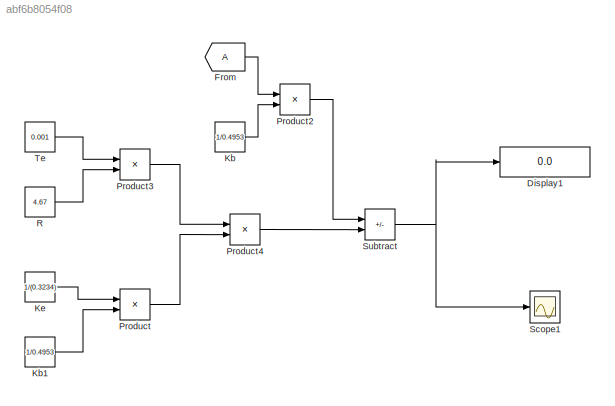
MODEL slx_abf6b8054f08
KIND model
CONFIG AbsTol = auto
CONFIG EnableMultiTasking = off
CONFIG FixedStep = auto
CONFIG MaxStep = auto
CONFIG MinStep = auto
CONFIG RelTol = 1e-3
CONFIG SampleTimeConstraint = Unconstrained
CONFIG SolverName = VariableStepAuto
CONFIG StartTime = 0.0
CONFIG StopTime = 10.0
BLOCK [Display] Display1
  Decimation = 1
  Ports = [1]
BLOCK [From] From
BLOCK [Constant] Kb
  Value = 1/0.4953
BLOCK [Constant] Kb1
  Value = 1/0.4953
BLOCK [Constant] Ke
  Value = 1/(0.3234)
BLOCK [Product] Product
  Ports = [2, 1]
BLOCK [Product] Product2
  Ports = [2, 1]
BLOCK [Product] Product3
  Ports = [2, 1]
BLOCK [Product] Product4
  Ports = [2, 1]
BLOCK [Constant] R
  Value = 4.67
BLOCK [Scope] Scope1
  Floating = off
  NumInputPorts = 1
  Ports = [1]
  ScopeSpecificationString = Simulink.scopes.TimeScopeBlockCfg('CurrentConfiguration', extmgr.ConfigurationSet(extmgr.Configuration('Core','General UI',true),extmgr.Configuration('Core','Source UI',true),extmgr.Configuration('Sources','WiredSimulink',true),extmgr.Configuration('Visuals','Time Domain',true,'SerializedDisplays',{struct('MinYLimReal','-13.38266','MaxYLimReal','19.37115','YLabelReal','','MinYLimMag','0.00000','Ma...<+1334ch>
BLOCK [Sum] Subtract
  IconShape = rectangular
  Inputs = +-
  Ports = [2, 1]
BLOCK [Constant] Te
  Value = 0.001
LINE From:1 -> Product2:1
LINE Kb1:1 -> Product:2
LINE Kb:1 -> Product2:2
LINE Ke:1 -> Product:1
LINE Product2:1 -> Subtract:1
LINE Product3:1 -> Product4:1
LINE Product4:1 -> Subtract:2
LINE Product:1 -> Product4:2
LINE R:1 -> Product3:2
NET Subtract:1 -> Display1:1, Scope1:1
LINE Te:1 -> Product3:1
note: NET lines group one-source signal fan-out (src -> all destinations, sorted); 1:1 wires keep LINE
